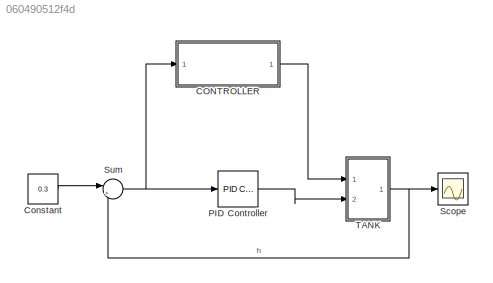
MODEL slx_060490512f4d
KIND model
CONFIG AbsTol = auto
CONFIG EnableMultiTasking = off
CONFIG FixedStep = auto
CONFIG MaxStep = auto
CONFIG MinStep = auto
CONFIG RelTol = 1e-3
CONFIG SampleTimeConstraint = Unconstrained
CONFIG Solver = VariableStepAuto
CONFIG SolverName = VariableStepAuto
CONFIG StartTime = 0.0
CONFIG StopTime = 10
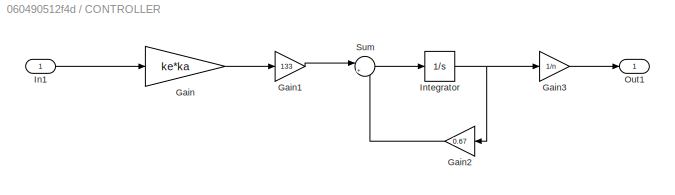
BLOCK [SubSystem] CONTROLLER 
  Commented = on
  Ports = [1, 1]
  RequestExecContextInheritance = off
BLOCK [Gain] CONTROLLER /Gain
  Gain = ke*ka
BLOCK [Gain] CONTROLLER /Gain1
  Gain = 133
BLOCK [Gain] CONTROLLER /Gain2
  Gain = 0.67
BLOCK [Gain] CONTROLLER /Gain3
  Gain = 1/n
BLOCK [Inport] CONTROLLER /In1
BLOCK [Integrator] CONTROLLER /Integrator
  Ports = [1, 1]
BLOCK [Outport] CONTROLLER /Out1
BLOCK [Sum] CONTROLLER /Sum
  Inputs = |+-
  Ports = [2, 1]
BLOCK [Constant] Constant
  Value = 0.3
BLOCK [Reference] PID Controller  REF=simulink/Continuous/PID Controller
  Ports = [1, 1]
  SourceBlock = simulink/Continuous/PID Controller
  SourceProductBaseCode = SL
  SourceType = PID 1dof
BLOCK [Scope] Scope
  Floating = off
  NumInputPorts = 1
  Ports = [1]
  ScopeSpecificationString = Simulink.scopes.TimeScopeBlockCfg('CurrentConfiguration', extmgr.ConfigurationSet(extmgr.Configuration('Core','General UI',true),extmgr.Configuration('Core','Source UI',true),extmgr.Configuration('Sources','WiredSimulink',true,'DataLoggingVariableName','ScopeData1'),extmgr.Configuration('Visuals','Time Domain',true,'SerializedDisplays',{struct('MinYLimReal','-0.03834','MaxYLimReal','0.34506','YLab...<+1410ch>
BLOCK [Sum] Sum
  Inputs = |+-
  Ports = [2, 1]
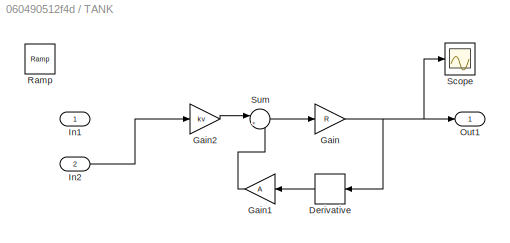
BLOCK [SubSystem] TANK
  Ports = [2, 1]
  RequestExecContextInheritance = off
BLOCK [Derivative] TANK/Derivative
BLOCK [Gain] TANK/Gain
  Gain = R
BLOCK [Gain] TANK/Gain1
  Gain = A
BLOCK [Gain] TANK/Gain2
  Gain = kv
BLOCK [Inport] TANK/In1
BLOCK [Inport] TANK/In2
  Port = 2
BLOCK [Outport] TANK/Out1
BLOCK [Reference] TANK/Ramp  REF=simulink/Sources/Ramp
  Ports = [0, 1]
  SourceBlock = simulink/Sources/Ramp
  SourceProductBaseCode = SL
  SourceType = Ramp
BLOCK [Scope] TANK/Scope
  Floating = off
  NumInputPorts = 1
  Ports = [1]
  ScopeSpecificationString = Simulink.scopes.TimeScopeBlockCfg('CurrentConfiguration', extmgr.ConfigurationSet(extmgr.Configuration('Core','General UI',true),extmgr.Configuration('Core','Source UI',true),extmgr.Configuration('Sources','WiredSimulink',true),extmgr.Configuration('Visuals','Time Domain',true,'SerializedDisplays',{struct('MinYLimReal','-0.03834','MaxYLimReal','0.34506','YLabelReal','','MinYLimMag','0.00000','MaxY...<+1353ch>
BLOCK [Sum] TANK/Sum
  Inputs = |+-
  Ports = [2, 1]
LINE CONTROLLER /Gain1:1 -> CONTROLLER /Sum:1
LINE CONTROLLER /Gain2:1 -> CONTROLLER /Sum:2
LINE CONTROLLER /Gain3:1 -> CONTROLLER /Out1:1
LINE CONTROLLER /Gain:1 -> CONTROLLER /Gain1:1
LINE CONTROLLER /In1:1 -> CONTROLLER /Gain:1
NET CONTROLLER /Integrator:1 -> CONTROLLER /Gain2:1, CONTROLLER /Gain3:1
LINE CONTROLLER /Sum:1 -> CONTROLLER /Integrator:1
LINE CONTROLLER :1 -> TANK:1
LINE Constant:1 -> Sum:1
LINE PID Controller:1 -> TANK:2
NET Sum:1 -> CONTROLLER :1, PID Controller:1
LINE TANK/Derivative:1 -> TANK/Gain1:1
LINE TANK/Gain1:1 -> TANK/Sum:2
LINE TANK/Gain2:1 -> TANK/Sum:1
NET TANK/Gain:1 -> TANK/Derivative:1, TANK/Out1:1, TANK/Scope:1
LINE TANK/In2:1 -> TANK/Gain2:1
LINE TANK/Sum:1 -> TANK/Gain:1
NET TANK:1 -> Scope:1, Sum:2
note: NET lines group one-source signal fan-out (src -> all destinations, sorted); 1:1 wires keep LINE
